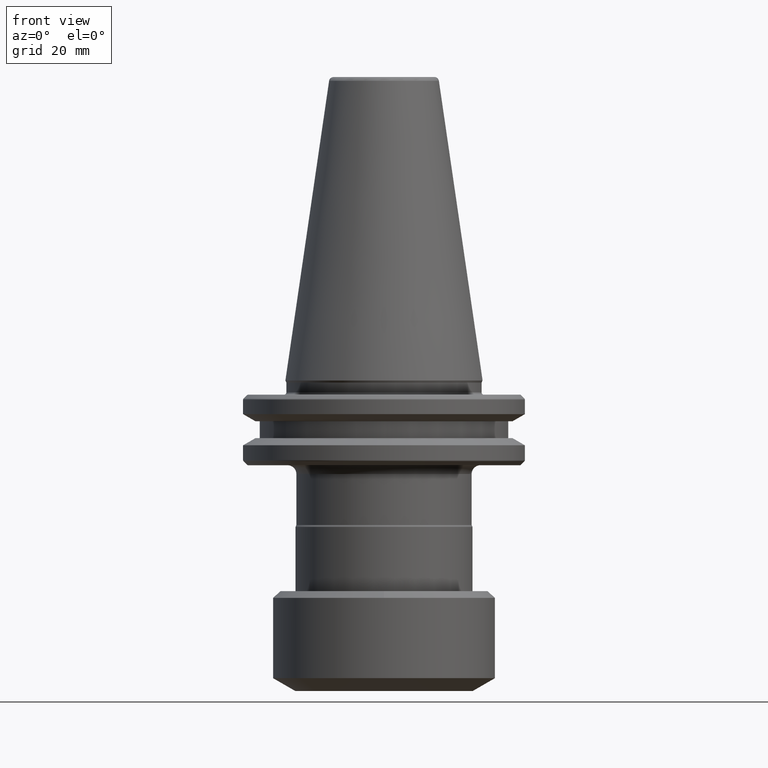
[diagram: clean part render]
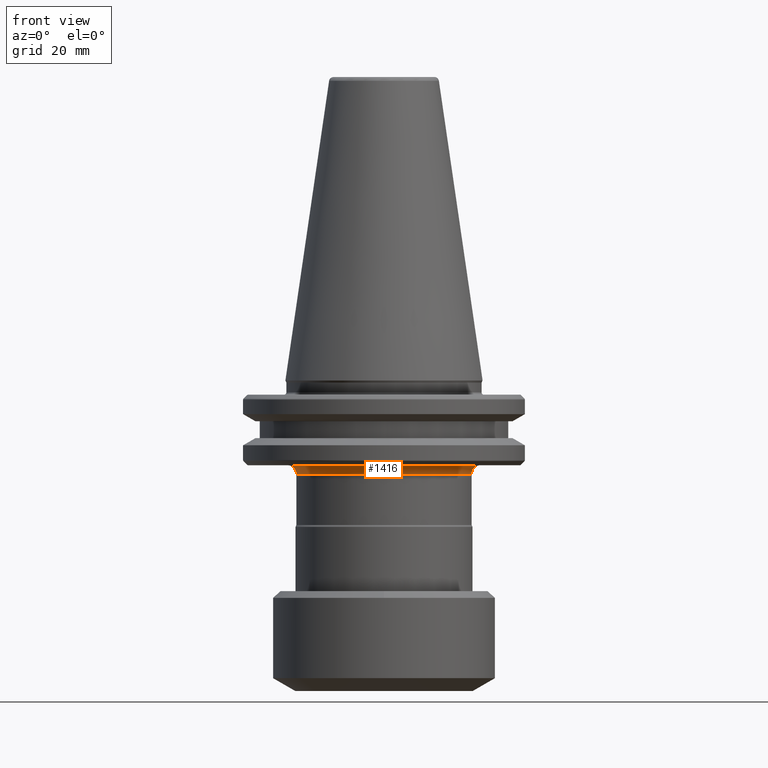
[diagram: same view with one face highlighted and labeled with its STEP entity id]
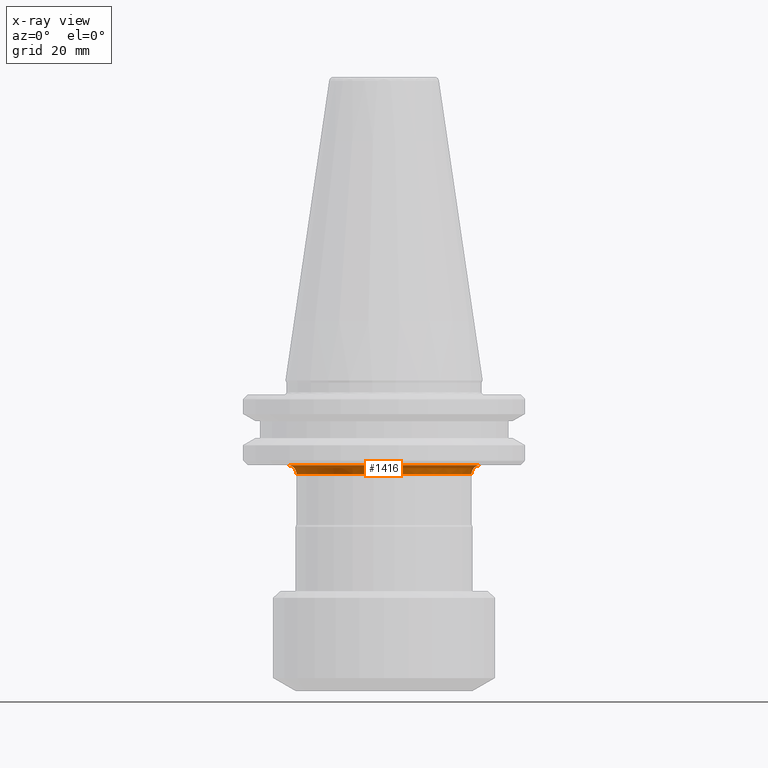
[diagram: x-ray of the same camera — body ghosted, the highlighted face saturated]
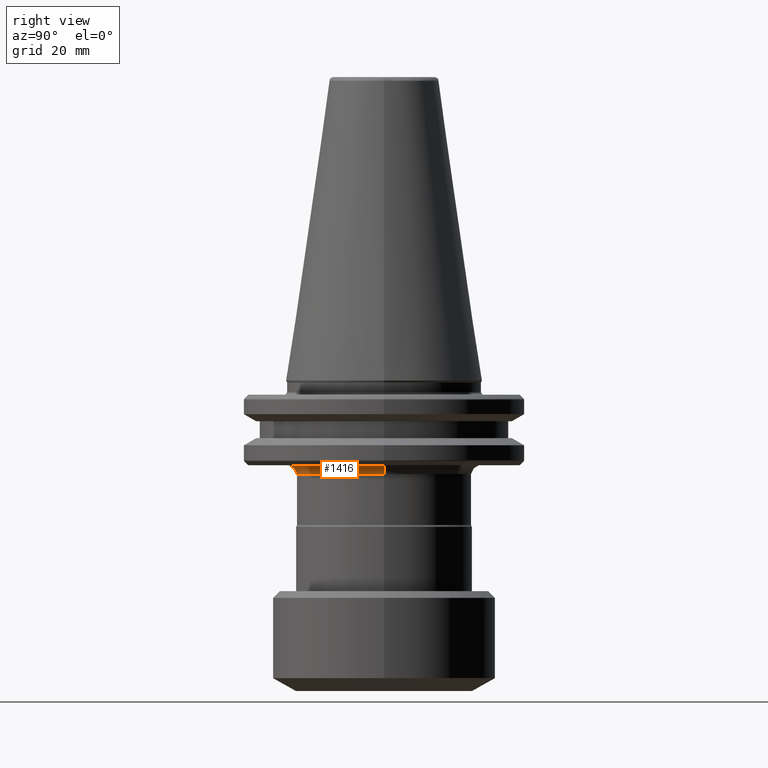
[diagram: same view with one face highlighted and labeled with its STEP entity id]
A machine part, front view. The second image highlights one B-rep face of the part: STEP entity #1416.
The next image is the same camera in x-ray: the body ghosted, the highlighted face saturated — about 0% of this face is hidden behind the body in this view.
A second angle (right view) of the same face is appended — the face is thin or edge-on in the first view.
In plain terms, the highlighted face is a freeform B-spline surface patch.
Its self-contained STEP definition (entity closure, byte-faithful):
#17 = EDGE_CURVE ( 'NONE', #723, #680, #435, .T. ) ;
#255 = EDGE_CURVE ( 'NONE', #723, #953, #1155, .T. ) ;
#279 =( BOUNDED_SURFACE ( )  B_SPLINE_SURFACE ( 3, 3, ( 
 ( #853, #830, #705, #1382 ),
 ( #1129, #802, #801, #799 ),
 ( #797, #788, #782, #779 ),
 ( #777, #773, #771, #766 ),
 ( #764, #760, #758, #754 ),
 ( #752, #751, #749, #742 ),
 ( #739, #737, #735, #731 ) ),
 .UNSPECIFIED., .F., .F., .F. ) 
 B_SPLINE_SURFACE_WITH_KNOTS ( ( 4, 3, 4 ),
 ( 4, 4 ),
 ( 0.05440428619309728400, 0.06314145705598882300, 0.9368585433451430700 ),
 ( 0.0000000000000000000, 1.000000000000000000 ),
 .UNSPECIFIED. ) 
 GEOMETRIC_REPRESENTATION_ITEM ( )  RATIONAL_B_SPLINE_SURFACE ( (
 ( 0.9565783021300851000, 0.3188594340433610300, 0.3188594340433610300, 0.9565783021300851000),
 ( 0.9565783021300851000, 0.3188594340433610300, 0.3188594340433610300, 0.9565783021300851000),
 ( 0.9565783021300851000, 0.3188594340433610300, 0.3188594340433610300, 0.9565783021300851000),
 ( 0.9565783021300851000, 0.3188594340433610300, 0.3188594340433610300, 0.9565783021300851000),
 ( 0.7697947703221902400, 0.2565982567740630000, 0.2565982567740630000, 0.7697947703221902400),
 ( 0.7697947704079440800, 0.2565982568026480300, 0.2565982568026480300, 0.7697947704079440800),
 ( 0.9565783023873469800, 0.3188594341291160500, 0.3188594341291160500, 0.9565783023873469800) ) ) 
 REPRESENTATION_ITEM ( '' )  SURFACE ( )  );
#286 = FACE_OUTER_BOUND ( 'NONE', #791, .T. ) ;
#435 = CIRCLE ( 'NONE', #442, 19.74999999999999300 ) ;
#442 = AXIS2_PLACEMENT_3D ( 'NONE', #917, #938, #904 ) ;
#456 = CARTESIAN_POINT ( 'NONE',  ( 19.74999999999999600, -2.418677428316022700E-015, -21.10000000000000100 ) ) ;
#536 = CARTESIAN_POINT ( 'NONE',  ( -19.74999999999999600, 9.070040356185085700E-016, -21.10000000000000500 ) ) ;
#540 = CARTESIAN_POINT ( 'NONE',  ( -19.75000000000000000, 0.0000000000000000000, -20.02773449330373600 ) ) ;
#578 = CARTESIAN_POINT ( 'NONE',  ( -21.55025015876751500, 0.0000000000000000000, -19.10999999983541300 ) ) ;
#585 = CARTESIAN_POINT ( 'NONE',  ( -20.46665512648542400, 0.0000000000000000000, -19.21876780704806400 ) ) ;
#586 = ORIENTED_EDGE ( 'NONE', *, *, #255, .T. ) ;
#608 = EDGE_CURVE ( 'NONE', #953, #1371, #1383, .T. ) ;
#648 = CARTESIAN_POINT ( 'NONE',  ( -19.74999999999999600, 9.070040356185085700E-016, -21.10000000000000500 ) ) ;
#662 = ORIENTED_EDGE ( 'NONE', *, *, #608, .T. ) ;
#680 = VERTEX_POINT ( 'NONE', #648 ) ;
#694 = DIRECTION ( 'NONE',  ( 0.0000000000000000000, 1.000000000000000000, 0.0000000000000000000 ) ) ;
#695 = EDGE_CURVE ( 'NONE', #1371, #680, #1013, .T. ) ;
#696 = DIRECTION ( 'NONE',  ( 0.0000000000000000000, 7.965381728195723200E-017, -1.000000000000000000 ) ) ;
#705 = CARTESIAN_POINT ( 'NONE',  ( -21.77828427024736500, -43.55656854049473700, -19.09999999997586400 ) ) ;
#714 = CARTESIAN_POINT ( 'NONE',  ( 0.0000000000000000000, 7.965381616322888200E-019, -19.10999999983541300 ) ) ;
#723 = VERTEX_POINT ( 'NONE', #456 ) ;
#731 = CARTESIAN_POINT ( 'NONE',  ( -19.74999999999999300, 0.0000000000000000000, -21.10000000000000100 ) ) ;
#735 = CARTESIAN_POINT ( 'NONE',  ( -19.75000000000000700, -39.50000000000001400, -21.09999999999999800 ) ) ;
#737 = CARTESIAN_POINT ( 'NONE',  ( 19.75000000000000700, -39.50000000000001400, -21.09999999999999800 ) ) ;
#739 = CARTESIAN_POINT ( 'NONE',  ( 19.74999999999999300, 0.0000000000000000000, -21.10000000000000100 ) ) ;
#742 = CARTESIAN_POINT ( 'NONE',  ( -19.75000000000000000, 0.0000000000000000000, -19.92842712600000300 ) ) ;
#749 = CARTESIAN_POINT ( 'NONE',  ( -19.75000000000000700, -39.50000000000001400, -19.92842712600000300 ) ) ;
#751 = CARTESIAN_POINT ( 'NONE',  ( 19.75000000000000700, -39.50000000000001400, -19.92842712600000300 ) ) ;
#752 = CARTESIAN_POINT ( 'NONE',  ( 19.75000000000000000, 0.0000000000000000000, -19.92842712600000300 ) ) ;
#754 = CARTESIAN_POINT ( 'NONE',  ( -20.57842712400000100, 0.0000000000000000000, -19.10000000100000200 ) ) ;
#758 = CARTESIAN_POINT ( 'NONE',  ( -20.57842712400000100, -41.15685424800000200, -19.10000000100000200 ) ) ;
#760 = CARTESIAN_POINT ( 'NONE',  ( 20.57842712400000100, -41.15685424800000200, -19.10000000100000200 ) ) ;
#764 = CARTESIAN_POINT ( 'NONE',  ( 20.57842712400000100, 0.0000000000000000000, -19.10000000100000200 ) ) ;
#766 = CARTESIAN_POINT ( 'NONE',  ( -21.74999999900000000, 0.0000000000000000000, -19.09999999999999800 ) ) ;
#771 = CARTESIAN_POINT ( 'NONE',  ( -21.74999999900000000, -43.49999999800000700, -19.10000000000000100 ) ) ;
#773 = CARTESIAN_POINT ( 'NONE',  ( 21.74999999900000000, -43.49999999800000700, -19.10000000000000100 ) ) ;
#777 = CARTESIAN_POINT ( 'NONE',  ( 21.74999999900000000, 0.0000000000000000000, -19.09999999999999800 ) ) ;
#779 = CARTESIAN_POINT ( 'NONE',  ( -21.75942808941578800, 0.0000000000000000000, -19.09999999999195100 ) ) ;
#782 = CARTESIAN_POINT ( 'NONE',  ( -21.75942808941578800, -43.51885617883158400, -19.09999999999195500 ) ) ;
#788 = CARTESIAN_POINT ( 'NONE',  ( 21.75942808941578800, -43.51885617883158400, -19.09999999999195500 ) ) ;
#791 = EDGE_LOOP ( 'NONE', ( #586, #662, #894, #1557 ) ) ;
#797 = CARTESIAN_POINT ( 'NONE',  ( 21.75942808941578800, 0.0000000000000000000, -19.09999999999195100 ) ) ;
#799 = CARTESIAN_POINT ( 'NONE',  ( -21.76885617983157700, 0.0000000000000000000, -19.09999999998391100 ) ) ;
#801 = CARTESIAN_POINT ( 'NONE',  ( -21.76885617983157700, -43.53771235966317500, -19.09999999998391800 ) ) ;
#802 = CARTESIAN_POINT ( 'NONE',  ( 21.76885617983157700, -43.53771235966317500, -19.09999999998391800 ) ) ;
#830 = CARTESIAN_POINT ( 'NONE',  ( 21.77828427024736500, -43.55656854049473700, -19.09999999997586400 ) ) ;
#853 = CARTESIAN_POINT ( 'NONE',  ( 21.77828427024736200, 0.0000000000000000000, -19.09999999997585400 ) ) ;
#894 = ORIENTED_EDGE ( 'NONE', *, *, #695, .T. ) ;
#904 = DIRECTION ( 'NONE',  ( 0.0000000000000000000, 1.000000000000000000, 0.0000000000000000000 ) ) ;
#917 = CARTESIAN_POINT ( 'NONE',  ( 0.0000000000000000000, 0.0000000000000000000, -21.10000000000000100 ) ) ;
#931 = CARTESIAN_POINT ( 'NONE',  ( -21.55025015876751500, 0.0000000000000000000, -19.10999999983540900 ) ) ;
#938 = DIRECTION ( 'NONE',  ( -0.0000000000000000000, -8.783410004945857400E-017, -1.000000000000000000 ) ) ;
#953 = VERTEX_POINT ( 'NONE', #1318 ) ;
#1013 =( BOUNDED_CURVE ( )  B_SPLINE_CURVE ( 3, ( #578, #585, #540, #536 ),
 .UNSPECIFIED., .F., .F. ) 
 B_SPLINE_CURVE_WITH_KNOTS ( ( 4, 4 ),
 ( 0.1237432785670477800, 0.9368585433451400700 ),
 .UNSPECIFIED. ) 
 CURVE ( )  GEOMETRIC_REPRESENTATION_ITEM ( )  RATIONAL_B_SPLINE_CURVE ( ( 0.9204076805239106400, 0.7706933741977506400, 0.7827502481522292700, 0.9565783023873459800 ) ) 
 REPRESENTATION_ITEM ( '' )  );
#1129 = CARTESIAN_POINT ( 'NONE',  ( 21.76885617983157700, 0.0000000000000000000, -19.09999999998391100 ) ) ;
#1155 =( BOUNDED_CURVE ( )  B_SPLINE_CURVE ( 3, ( #1492, #1494, #1496, #1484 ),
 .UNSPECIFIED., .F., .F. ) 
 B_SPLINE_CURVE_WITH_KNOTS ( ( 4, 4 ),
 ( 0.05440428619309752000, 0.8675195509690526400 ),
 .UNSPECIFIED. ) 
 CURVE ( )  GEOMETRIC_REPRESENTATION_ITEM ( )  RATIONAL_B_SPLINE_CURVE ( ( 0.9565783023873459800, 0.7827502481526862300, 0.7706933741978140300, 0.9204076805227303600 ) ) 
 REPRESENTATION_ITEM ( '' )  );
#1208 = AXIS2_PLACEMENT_3D ( 'NONE', #714, #696, #694 ) ;
#1318 = CARTESIAN_POINT ( 'NONE',  ( 21.55025015876394100, 0.0000000000000000000, -19.10999999983577200 ) ) ;
#1371 = VERTEX_POINT ( 'NONE', #931 ) ;
#1382 = CARTESIAN_POINT ( 'NONE',  ( -21.77828427024736200, 0.0000000000000000000, -19.09999999997585400 ) ) ;
#1383 = CIRCLE ( 'NONE', #1208, 21.55025015876750800 ) ;
#1416 = ADVANCED_FACE ( 'NONE', ( #286 ), #279, .F. ) ;
#1484 = CARTESIAN_POINT ( 'NONE',  ( 21.55025015876394100, 0.0000000000000000000, -19.10999999983577200 ) ) ;
#1492 = CARTESIAN_POINT ( 'NONE',  ( 19.74999999999999600, -2.418677428316022700E-015, -21.10000000000000100 ) ) ;
#1494 = CARTESIAN_POINT ( 'NONE',  ( 19.75000000000000000, 0.0000000000000000000, -20.02773449330718200 ) ) ;
#1496 = CARTESIAN_POINT ( 'NONE',  ( 20.46665512648159800, 0.0000000000000000000, -19.21876780705238400 ) ) ;
#1557 = ORIENTED_EDGE ( 'NONE', *, *, #17, .F. ) ;